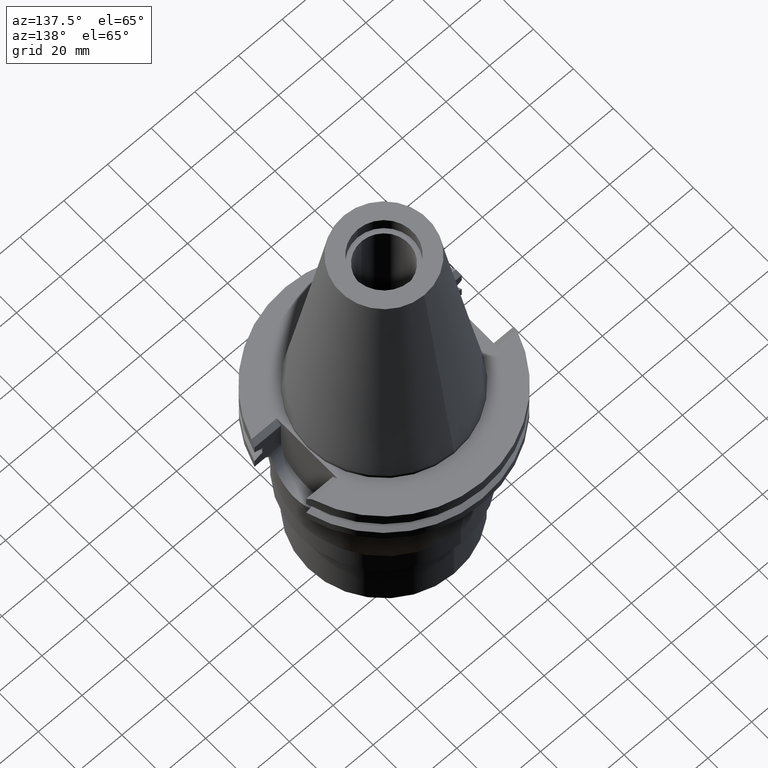
[diagram: clean part render]
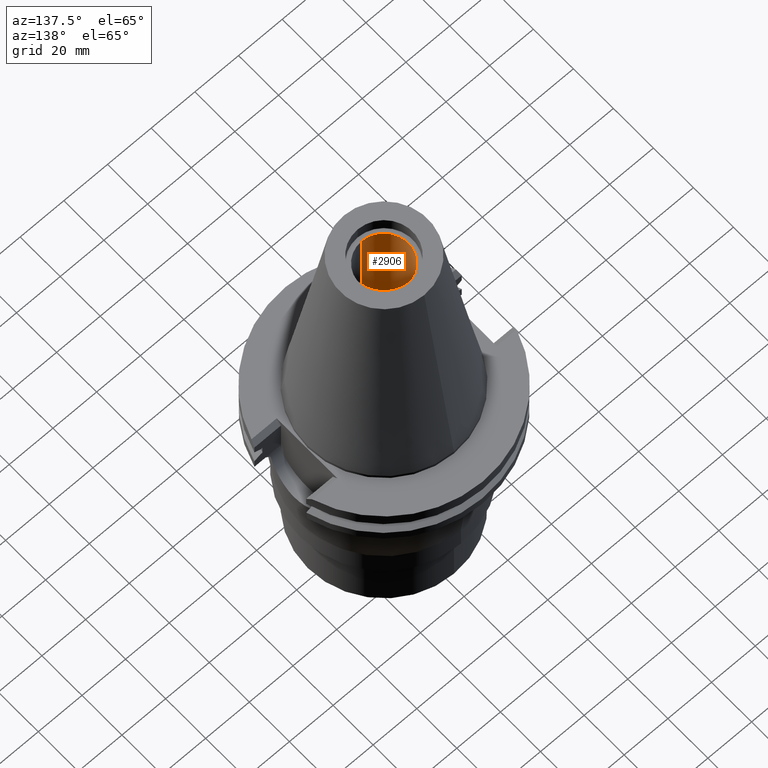
[diagram: same view with one face highlighted and labeled with its STEP entity id]
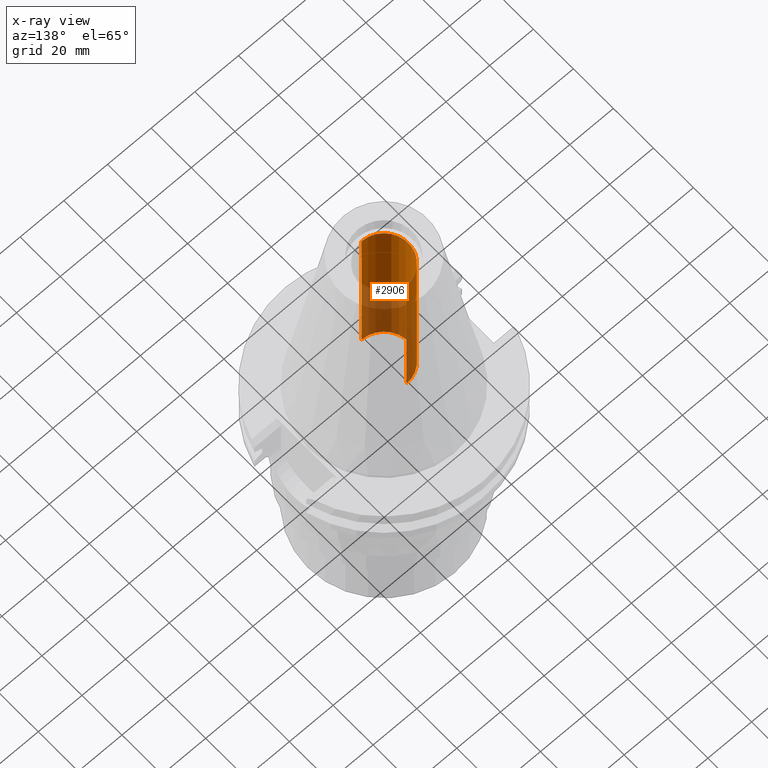
[diagram: x-ray of the same camera — body ghosted, the highlighted face saturated]
A machine part, auxiliary view. The second image highlights one B-rep face of the part: STEP entity #2906.
The next image is the same camera in x-ray: the body ghosted, the highlighted face saturated — about 48% of this face is hidden behind the body in this view.
In plain terms, the highlighted cylindrical surface (edge-blend (fillet) strip) has radius 11.15 mm, axis along (0, 0, -1).
Its self-contained STEP definition (entity closure, byte-faithful):
#1449=CARTESIAN_POINT('',(0.E0,2.594781638033E-14,1.66E1));
#1450=DIRECTION('',(0.E0,0.E0,-1.E0));
#1451=DIRECTION('',(0.E0,-1.E0,0.E0));
#1452=AXIS2_PLACEMENT_3D('',#1449,#1450,#1451);
#1481=DIRECTION('',(0.E0,0.E0,1.E0));
#1482=VECTOR('',#1481,7.865E1);
#1483=CARTESIAN_POINT('',(0.E0,-1.115E1,1.66E1));
#1484=LINE('',#1483,#1482);
#1488=DIRECTION('',(0.E0,0.E0,1.E0));
#1489=VECTOR('',#1488,7.865E1);
#1490=CARTESIAN_POINT('',(0.E0,1.115E1,1.66E1));
#1491=LINE('',#1490,#1489);
#1519=CARTESIAN_POINT('',(0.E0,2.594781638033E-14,9.525E1));
#1520=DIRECTION('',(0.E0,0.E0,1.E0));
#1521=DIRECTION('',(0.E0,1.E0,0.E0));
#1522=AXIS2_PLACEMENT_3D('',#1519,#1520,#1521);
#1553=CARTESIAN_POINT('',(0.E0,-1.115E1,9.525E1));
#1554=CARTESIAN_POINT('',(0.E0,1.115E1,9.525E1));
#1555=VERTEX_POINT('',#1553);
#1556=VERTEX_POINT('',#1554);
#1557=CARTESIAN_POINT('',(0.E0,1.115E1,1.66E1));
#1558=VERTEX_POINT('',#1557);
#1559=CARTESIAN_POINT('',(0.E0,-1.115E1,1.66E1));
#1560=VERTEX_POINT('',#1559);
#2892=CARTESIAN_POINT('',(0.E0,2.594781638033E-14,1.1188E2));
#2893=DIRECTION('',(0.E0,0.E0,-1.E0));
#2894=DIRECTION('',(0.E0,-1.E0,0.E0));
#2895=AXIS2_PLACEMENT_3D('',#2892,#2893,#2894);
#2896=CYLINDRICAL_SURFACE('',#2895,1.115E1);
#2898=ORIENTED_EDGE('',*,*,#2897,.F.);
#2899=ORIENTED_EDGE('',*,*,#2881,.F.);
#2901=ORIENTED_EDGE('',*,*,#2900,.T.);
#2903=ORIENTED_EDGE('',*,*,#2902,.F.);
#2904=EDGE_LOOP('',(#2898,#2899,#2901,#2903));
#2905=FACE_OUTER_BOUND('',#2904,.F.);
#1453=CIRCLE('',#1452,1.115E1);
#1523=CIRCLE('',#1522,1.115E1);
#2881=EDGE_CURVE('',#1560,#1558,#1453,.T.);
#2897=EDGE_CURVE('',#1558,#1556,#1491,.T.);
#2900=EDGE_CURVE('',#1560,#1555,#1484,.T.);
#2902=EDGE_CURVE('',#1556,#1555,#1523,.T.);
#2906=ADVANCED_FACE('',(#2905),#2896,.F.);